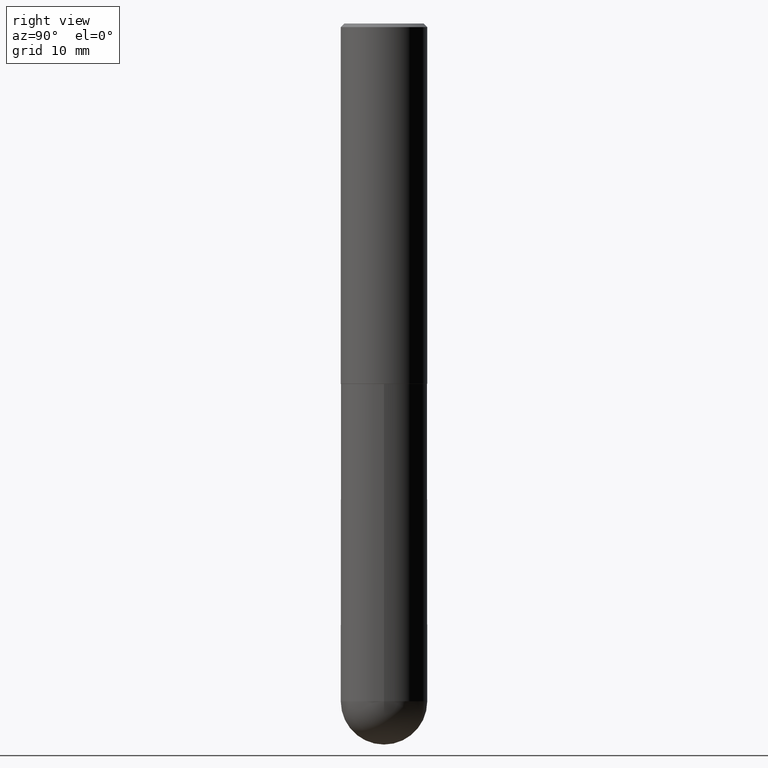
[diagram: clean part render]
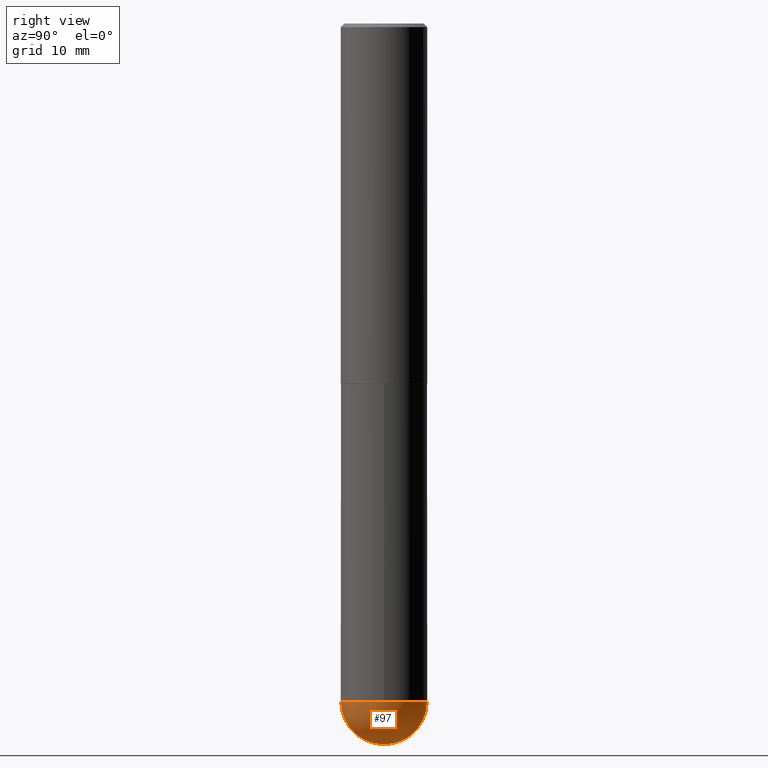
[diagram: same view with one face highlighted and labeled with its STEP entity id]
A machine part, right view. The second image highlights one B-rep face of the part: STEP entity #97.
In plain terms, the highlighted spherical surface has radius 5.9995 mm.
Its self-contained STEP definition (entity closure, byte-faithful):
#13 = CARTESIAN_POINT ( 'NONE',  ( -1.678301941865268633E-15, -0.2362000000000132882, -3.700799999999998757 ) ) ;
#14 = FACE_OUTER_BOUND ( 'NONE', #144, .T. ) ;
#37 = AXIS2_PLACEMENT_3D ( 'NONE', #286, #56, #225 ) ;
#56 = DIRECTION ( 'NONE',  ( 1.000000000000000000, -6.982962677686265922E-15, 4.883557194083112340E-29 ) ) ;
#63 = CARTESIAN_POINT ( 'NONE',  ( 9.306790425912204830E-29, -1.420568132046758614E-14, -3.937000000000000277 ) ) ;
#68 = CIRCLE ( 'NONE', #302, 0.2362000000000002709 ) ;
#78 = CARTESIAN_POINT ( 'NONE',  ( 8.719071180016067419E-29, -1.339545650693076387E-14, -3.700800000000000090 ) ) ;
#84 = VERTEX_POINT ( 'NONE', #13 ) ;
#92 = DIRECTION ( 'NONE',  ( -1.000000000000000000, 6.982962677686265922E-15, -4.883557194083112901E-29 ) ) ;
#97 = ADVANCED_FACE ( 'NONE', ( #14 ), #356, .T. ) ;
#100 = DIRECTION ( 'NONE',  ( 1.000000000000000000, -6.982962677686265133E-15, 0.000000000000000000 ) ) ;
#107 = VERTEX_POINT ( 'NONE', #192 ) ;
#108 = VERTEX_POINT ( 'NONE', #63 ) ;
#118 = CARTESIAN_POINT ( 'NONE',  ( 8.719071180016067419E-29, -1.339545650693076387E-14, -3.700800000000000090 ) ) ;
#129 = CARTESIAN_POINT ( 'NONE',  ( 9.050190957929953666E-29, -1.292127413879071357E-14, -3.700800000000000090 ) ) ;
#144 = EDGE_LOOP ( 'NONE', ( #248, #148, #251, #353 ) ) ;
#148 = ORIENTED_EDGE ( 'NONE', *, *, #186, .T. ) ;
#157 = AXIS2_PLACEMENT_3D ( 'NONE', #129, #170, #100 ) ;
#167 = DIRECTION ( 'NONE',  ( -7.105427357601001070E-15, -1.000000000000000000, 0.000000000000000000 ) ) ;
#170 = DIRECTION ( 'NONE',  ( -2.445468806185136597E-29, 3.491481338843145583E-15, 1.000000000000000000 ) ) ;
#181 = CARTESIAN_POINT ( 'NONE',  ( 9.050190957929953666E-29, -1.292127413879071357E-14, -3.700800000000000090 ) ) ;
#186 = EDGE_CURVE ( 'NONE', #108, #220, #255, .T. ) ;
#190 = EDGE_CURVE ( 'NONE', #84, #107, #372, .T. ) ;
#192 = CARTESIAN_POINT ( 'NONE',  ( 0.2361999999999999933, -1.154650336162122153E-14, -3.700800000000000090 ) ) ;
#210 = DIRECTION ( 'NONE',  ( 1.000000000000000000, -6.982962677686265133E-15, 0.000000000000000000 ) ) ;
#220 = VERTEX_POINT ( 'NONE', #377 ) ;
#225 = DIRECTION ( 'NONE',  ( 6.982962677686265922E-15, 1.000000000000000000, 0.000000000000000000 ) ) ;
#248 = ORIENTED_EDGE ( 'NONE', *, *, #320, .F. ) ;
#251 = ORIENTED_EDGE ( 'NONE', *, *, #289, .F. ) ;
#255 = CIRCLE ( 'NONE', #37, 0.2362000000000002709 ) ;
#284 = DIRECTION ( 'NONE',  ( 6.982962677686265922E-15, 1.000000000000000000, -4.626330217890364603E-15 ) ) ;
#286 = CARTESIAN_POINT ( 'NONE',  ( 8.719071180016067419E-29, -1.339545650693076387E-14, -3.700800000000000090 ) ) ;
#289 = EDGE_CURVE ( 'NONE', #107, #220, #397, .T. ) ;
#298 = AXIS2_PLACEMENT_3D ( 'NONE', #118, #92, #284 ) ;
#302 = AXIS2_PLACEMENT_3D ( 'NONE', #78, #336, #167 ) ;
#311 = DIRECTION ( 'NONE',  ( -2.445468806185136597E-29, 3.491481338843145583E-15, 1.000000000000000000 ) ) ;
#320 = EDGE_CURVE ( 'NONE', #108, #84, #68, .T. ) ;
#336 = DIRECTION ( 'NONE',  ( -1.000000000000000000, 7.105427357601001070E-15, -4.926315508542082329E-29 ) ) ;
#353 = ORIENTED_EDGE ( 'NONE', *, *, #190, .F. ) ;
#356 = SPHERICAL_SURFACE ( 'NONE', #298, 0.2362000000000002709 ) ;
#372 = CIRCLE ( 'NONE', #375, 0.2361999999999999933 ) ;
#375 = AXIS2_PLACEMENT_3D ( 'NONE', #181, #311, #210 ) ;
#377 = CARTESIAN_POINT ( 'NONE',  ( 1.649375784469585666E-15, 0.2361999999999869759, -3.700800000000000978 ) ) ;
#397 = CIRCLE ( 'NONE', #157, 0.2361999999999999933 ) ;